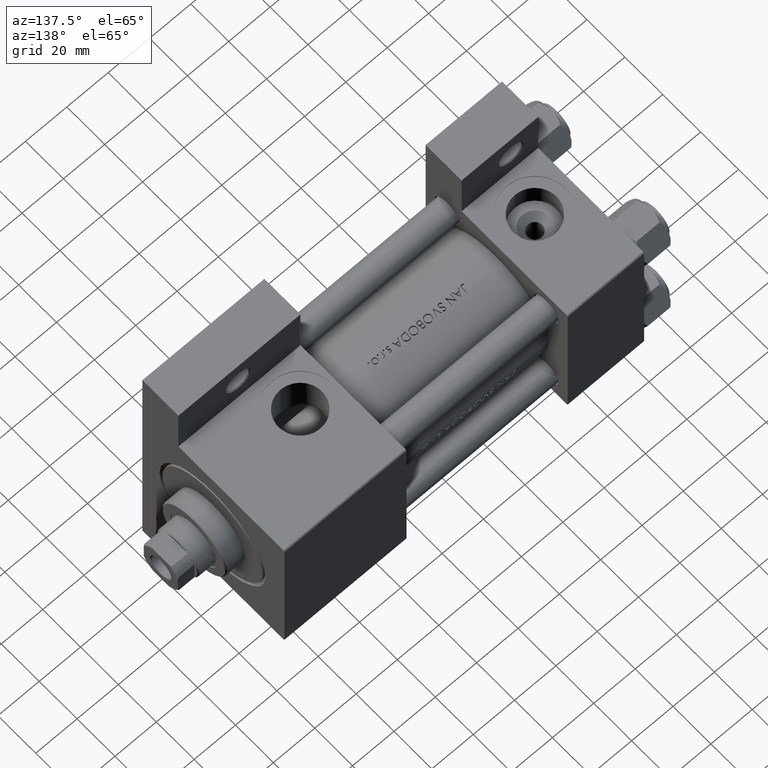
[diagram: clean part render]
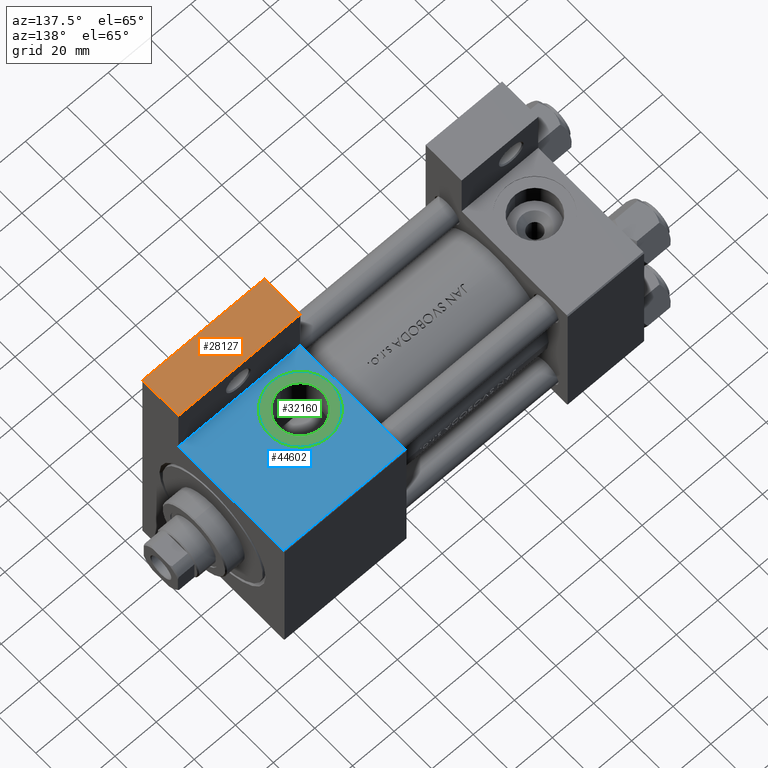
[diagram: same view with three faces highlighted in distinct colors, each labeled with its STEP entity id]
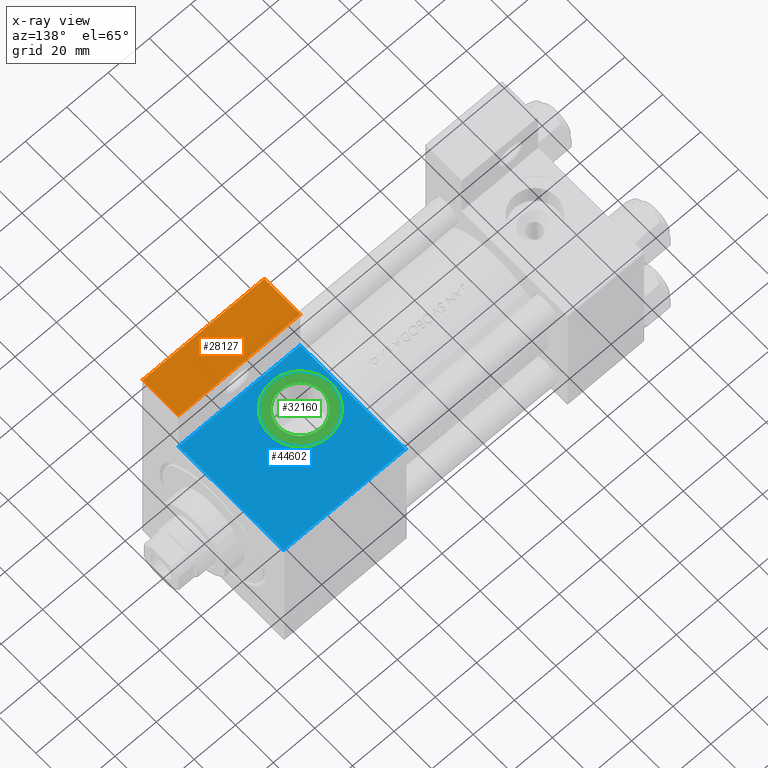
[diagram: x-ray of the same camera — body ghosted, the three highlighted faces saturated]
A machine part, auxiliary view with three faces highlighted in distinct colors.
The next image is the same camera in x-ray (body ghosted, the three faces saturated) — at least one of them is partly hidden behind the body in this view.
Their STEP definitions:

[orange] entity #28127 — the highlighted planar face has unit normal (-0, 0, 1).
#297 = EDGE_LOOP ( 'NONE', ( #1692, #29308, #9807, #22196 ) ) ;
#390 = DIRECTION ( 'NONE',  ( 0.000000000000000000, 0.000000000000000000, -1.000000000000000000 ) ) ;
#589 = VERTEX_POINT ( 'NONE', #29819 ) ;
#1504 = VERTEX_POINT ( 'NONE', #41440 ) ;
#1692 = ORIENTED_EDGE ( 'NONE', *, *, #24674, .F. ) ;
#2413 = CARTESIAN_POINT ( 'NONE',  ( 174.0000000000000000, -63.50000000000002842, -18.50000000000000000 ) ) ;
#5906 = LINE ( 'NONE', #2413, #6669 ) ;
#6482 = VECTOR ( 'NONE', #34898, 1000.000000000000000 ) ;
#6669 = VECTOR ( 'NONE', #25522, 1000.000000000000000 ) ;
#8343 = LINE ( 'NONE', #19029, #15817 ) ;
#9623 = CARTESIAN_POINT ( 'NONE',  ( 114.9999999999999716, -63.50000000000000000, -18.50000000000000000 ) ) ;
#9778 = AXIS2_PLACEMENT_3D ( 'NONE', #39795, #24082, #39305 ) ;
#9807 = ORIENTED_EDGE ( 'NONE', *, *, #33795, .T. ) ;
#12854 = LINE ( 'NONE', #9623, #29294 ) ;
#15817 = VECTOR ( 'NONE', #390, 1000.000000000000000 ) ;
#16862 = FACE_OUTER_BOUND ( 'NONE', #297, .T. ) ;
#19029 = CARTESIAN_POINT ( 'NONE',  ( 114.9999999999999716, -63.50000000000000000, -18.50000000000000000 ) ) ;
#19411 = VERTEX_POINT ( 'NONE', #40379 ) ;
#22196 = ORIENTED_EDGE ( 'NONE', *, *, #34081, .T. ) ;
#23665 = CARTESIAN_POINT ( 'NONE',  ( 114.9999999999999716, -63.50000000000000000, -37.50000000000000000 ) ) ;
#24082 = DIRECTION ( 'NONE',  ( -4.704334850106594808E-16, -1.000000000000000000, 0.000000000000000000 ) ) ;
#24674 = EDGE_CURVE ( 'NONE', #19411, #589, #45883, .T. ) ;
#25522 = DIRECTION ( 'NONE',  ( 0.000000000000000000, 0.000000000000000000, -1.000000000000000000 ) ) ;
#28127 = ADVANCED_FACE ( 'NONE', ( #16862 ), #47030, .T. ) ;
#29294 = VECTOR ( 'NONE', #35529, 1000.000000000000000 ) ;
#29308 = ORIENTED_EDGE ( 'NONE', *, *, #48987, .F. ) ;
#29819 = CARTESIAN_POINT ( 'NONE',  ( 114.9999999999999716, -63.50000000000000000, -37.50000000000000000 ) ) ;
#33795 = EDGE_CURVE ( 'NONE', #40895, #1504, #12854, .T. ) ;
#34081 = EDGE_CURVE ( 'NONE', #1504, #589, #8343, .T. ) ;
#34898 = DIRECTION ( 'NONE',  ( -1.000000000000000000, 4.704334850106594808E-16, -0.000000000000000000 ) ) ;
#35529 = DIRECTION ( 'NONE',  ( -1.000000000000000000, 4.704334850106594808E-16, -0.000000000000000000 ) ) ;
#39305 = DIRECTION ( 'NONE',  ( 1.000000000000000000, -4.704334850106594808E-16, 0.000000000000000000 ) ) ;
#39795 = CARTESIAN_POINT ( 'NONE',  ( 114.9999999999999716, -63.50000000000000000, -18.50000000000000000 ) ) ;
#40379 = CARTESIAN_POINT ( 'NONE',  ( 174.0000000000000000, -63.50000000000002842, -37.50000000000000000 ) ) ;
#40895 = VERTEX_POINT ( 'NONE', #46378 ) ;
#41440 = CARTESIAN_POINT ( 'NONE',  ( 114.9999999999999716, -63.50000000000000000, -18.50000000000000000 ) ) ;
#45883 = LINE ( 'NONE', #23665, #6482 ) ;
#46378 = CARTESIAN_POINT ( 'NONE',  ( 174.0000000000000000, -63.50000000000002842, -18.50000000000000000 ) ) ;
#47030 = PLANE ( 'NONE',  #9778 ) ;
#48987 = EDGE_CURVE ( 'NONE', #40895, #19411, #5906, .T. ) ;

[blue] entity #44602 — the highlighted planar face has unit normal (0, -0, -1).
#360 = LINE ( 'NONE', #41952, #45860 ) ;
#554 = CARTESIAN_POINT ( 'NONE',  ( 114.9999999999999858, -37.50000000000000000, 36.99999999999997868 ) ) ;
#805 = CARTESIAN_POINT ( 'NONE',  ( 114.9999999999999858, -37.50000000000000000, -18.50000000000000000 ) ) ;
#1092 = EDGE_CURVE ( 'NONE', #30499, #10109, #20365, .T. ) ;
#1419 = EDGE_LOOP ( 'NONE', ( #35239, #41733 ) ) ;
#2975 = EDGE_LOOP ( 'NONE', ( #37247, #30632, #40942, #10151 ) ) ;
#4288 = DIRECTION ( 'NONE',  ( 1.000000000000000000, -3.528251137579946599E-16, 0.000000000000000000 ) ) ;
#5520 = DIRECTION ( 'NONE',  ( 0.000000000000000000, 1.000000000000000000, -9.251858538542972814E-17 ) ) ;
#6491 = CARTESIAN_POINT ( 'NONE',  ( 174.0000000000000000, -37.50000000000000000, 37.49999999999997868 ) ) ;
#7418 = EDGE_CURVE ( 'NONE', #44466, #37284, #360, .T. ) ;
#8013 = VECTOR ( 'NONE', #35561, 1000.000000000000000 ) ;
#10109 = VERTEX_POINT ( 'NONE', #32074 ) ;
#10151 = ORIENTED_EDGE ( 'NONE', *, *, #17636, .T. ) ;
#11912 = CARTESIAN_POINT ( 'NONE',  ( 174.0000000000000000, -37.50000000000000000, 37.49999999999997868 ) ) ;
#14313 = DIRECTION ( 'NONE',  ( 0.000000000000000000, 0.000000000000000000, -1.000000000000000000 ) ) ;
#14538 = DIRECTION ( 'NONE',  ( -1.000000000000000000, 0.000000000000000000, 0.000000000000000000 ) ) ;
#16370 = LINE ( 'NONE', #11912, #8013 ) ;
#17636 = EDGE_CURVE ( 'NONE', #37284, #33506, #17852, .T. ) ;
#17852 = LINE ( 'NONE', #805, #46062 ) ;
#18937 = CARTESIAN_POINT ( 'NONE',  ( 132.0000000000000000, -37.50000000000000000, 3.469446951953615767E-15 ) ) ;
#20365 = CIRCLE ( 'NONE', #39488, 15.00000000000002487 ) ;
#21683 = EDGE_CURVE ( 'NONE', #34446, #33506, #16370, .T. ) ;
#21780 = CARTESIAN_POINT ( 'NONE',  ( 132.0000000000000000, -37.50000000000000000, 3.469446951953615767E-15 ) ) ;
#21999 = LINE ( 'NONE', #37214, #42324 ) ;
#25170 = EDGE_CURVE ( 'NONE', #34446, #44466, #21999, .T. ) ;
#25454 = CARTESIAN_POINT ( 'NONE',  ( 174.0000000000000000, -37.50000000000000000, 36.99999999999997868 ) ) ;
#26220 = DIRECTION ( 'NONE',  ( 0.000000000000000000, -9.251858538542972814E-17, -1.000000000000000000 ) ) ;
#26371 = AXIS2_PLACEMENT_3D ( 'NONE', #6491, #5520, #36605 ) ;
#28837 = CARTESIAN_POINT ( 'NONE',  ( 174.0000000000000000, -37.50000000000000711, -18.50000000000000355 ) ) ;
#29411 = DIRECTION ( 'NONE',  ( 0.000000000000000000, 0.000000000000000000, -1.000000000000000000 ) ) ;
#30272 = CARTESIAN_POINT ( 'NONE',  ( 132.0000000000000000, -37.50000000000000000, -15.00000000000002132 ) ) ;
#30499 = VERTEX_POINT ( 'NONE', #30272 ) ;
#30632 = ORIENTED_EDGE ( 'NONE', *, *, #25170, .T. ) ;
#32074 = CARTESIAN_POINT ( 'NONE',  ( 132.0000000000000000, -37.50000000000000000, 15.00000000000002842 ) ) ;
#32148 = FACE_OUTER_BOUND ( 'NONE', #2975, .T. ) ;
#33506 = VERTEX_POINT ( 'NONE', #28837 ) ;
#34149 = DIRECTION ( 'NONE',  ( 0.000000000000000000, -1.000000000000000000, -8.673617379884036705E-17 ) ) ;
#34446 = VERTEX_POINT ( 'NONE', #25454 ) ;
#35239 = ORIENTED_EDGE ( 'NONE', *, *, #1092, .F. ) ;
#35561 = DIRECTION ( 'NONE',  ( 0.000000000000000000, -9.251858538542972814E-17, -1.000000000000000000 ) ) ;
#36366 = FACE_BOUND ( 'NONE', #1419, .T. ) ;
#36605 = DIRECTION ( 'NONE',  ( 0.000000000000000000, 9.251858538542972814E-17, 1.000000000000000000 ) ) ;
#37214 = CARTESIAN_POINT ( 'NONE',  ( 174.0000000000000000, -37.50000000000000000, 36.99999999999997868 ) ) ;
#37247 = ORIENTED_EDGE ( 'NONE', *, *, #21683, .F. ) ;
#37284 = VERTEX_POINT ( 'NONE', #45411 ) ;
#39488 = AXIS2_PLACEMENT_3D ( 'NONE', #21780, #44742, #14313 ) ;
#40942 = ORIENTED_EDGE ( 'NONE', *, *, #7418, .T. ) ;
#41418 = CIRCLE ( 'NONE', #44614, 15.00000000000002487 ) ;
#41733 = ORIENTED_EDGE ( 'NONE', *, *, #42397, .F. ) ;
#41952 = CARTESIAN_POINT ( 'NONE',  ( 114.9999999999999858, -37.50000000000000000, 37.49999999999997868 ) ) ;
#42324 = VECTOR ( 'NONE', #14538, 1000.000000000000000 ) ;
#42397 = EDGE_CURVE ( 'NONE', #10109, #30499, #41418, .T. ) ;
#44466 = VERTEX_POINT ( 'NONE', #554 ) ;
#44602 = ADVANCED_FACE ( 'NONE', ( #36366, #32148 ), #47601, .F. ) ;
#44614 = AXIS2_PLACEMENT_3D ( 'NONE', #18937, #34149, #29411 ) ;
#44742 = DIRECTION ( 'NONE',  ( 0.000000000000000000, -1.000000000000000000, -8.673617379884036705E-17 ) ) ;
#45411 = CARTESIAN_POINT ( 'NONE',  ( 114.9999999999999858, -37.50000000000000000, -18.50000000000000000 ) ) ;
#45860 = VECTOR ( 'NONE', #26220, 1000.000000000000000 ) ;
#46062 = VECTOR ( 'NONE', #4288, 1000.000000000000000 ) ;
#47601 = PLANE ( 'NONE',  #26371 ) ;

[green] entity #32160 — the highlighted planar face has unit normal (0, -0, 1).
#102 = CIRCLE ( 'NONE', #1709, 15.00000000000002487 ) ;
#925 = DIRECTION ( 'NONE',  ( 0.000000000000000000, -1.000000000000000000, -8.673617379884036705E-17 ) ) ;
#1171 = DIRECTION ( 'NONE',  ( 0.000000000000000000, 0.000000000000000000, -1.000000000000000000 ) ) ;
#1709 = AXIS2_PLACEMENT_3D ( 'NONE', #33968, #3105, #18262 ) ;
#3105 = DIRECTION ( 'NONE',  ( 0.000000000000000000, -1.000000000000000000, -8.673617379884036705E-17 ) ) ;
#3711 = CARTESIAN_POINT ( 'NONE',  ( 132.0000000000000000, -37.29999999999999716, 3.486794186713383443E-15 ) ) ;
#5327 = CARTESIAN_POINT ( 'NONE',  ( 132.0000000000000000, -37.29999999999999716, -10.47999999999998266 ) ) ;
#7067 = CARTESIAN_POINT ( 'NONE',  ( 132.0000000000000000, -37.29999999999999716, 3.486794186713383443E-15 ) ) ;
#9629 = EDGE_LOOP ( 'NONE', ( #24547, #48732 ) ) ;
#10550 = DIRECTION ( 'NONE',  ( 0.000000000000000000, 8.673617379884036705E-17, -1.000000000000000000 ) ) ;
#11033 = FACE_OUTER_BOUND ( 'NONE', #43257, .T. ) ;
#12846 = VERTEX_POINT ( 'NONE', #24524 ) ;
#13332 = AXIS2_PLACEMENT_3D ( 'NONE', #7067, #25704, #10550 ) ;
#15261 = CIRCLE ( 'NONE', #16873, 10.47999999999998622 ) ;
#15278 = CIRCLE ( 'NONE', #22455, 10.47999999999998622 ) ;
#15471 = ORIENTED_EDGE ( 'NONE', *, *, #42972, .T. ) ;
#16775 = CARTESIAN_POINT ( 'NONE',  ( 132.0000000000000000, -37.29999999999999716, 3.486794186713383443E-15 ) ) ;
#16873 = AXIS2_PLACEMENT_3D ( 'NONE', #3711, #30084, #22349 ) ;
#17813 = VERTEX_POINT ( 'NONE', #40613 ) ;
#18262 = DIRECTION ( 'NONE',  ( 0.000000000000000000, 0.000000000000000000, -1.000000000000000000 ) ) ;
#22349 = DIRECTION ( 'NONE',  ( 0.000000000000000000, 0.000000000000000000, -1.000000000000000000 ) ) ;
#22455 = AXIS2_PLACEMENT_3D ( 'NONE', #16775, #35472, #43462 ) ;
#22707 = EDGE_CURVE ( 'NONE', #30906, #17813, #28705, .T. ) ;
#24524 = CARTESIAN_POINT ( 'NONE',  ( 132.0000000000000000, -37.29999999999999716, 10.47999999999998977 ) ) ;
#24547 = ORIENTED_EDGE ( 'NONE', *, *, #46014, .F. ) ;
#25704 = DIRECTION ( 'NONE',  ( 0.000000000000000000, -1.000000000000000000, -8.673617379884036705E-17 ) ) ;
#28705 = CIRCLE ( 'NONE', #29488, 15.00000000000002487 ) ;
#29488 = AXIS2_PLACEMENT_3D ( 'NONE', #38757, #925, #1171 ) ;
#30084 = DIRECTION ( 'NONE',  ( 0.000000000000000000, -1.000000000000000000, -8.673617379884036705E-17 ) ) ;
#30248 = EDGE_CURVE ( 'NONE', #12846, #40046, #15261, .T. ) ;
#30906 = VERTEX_POINT ( 'NONE', #35096 ) ;
#32160 = ADVANCED_FACE ( 'NONE', ( #49148, #11033 ), #37177, .T. ) ;
#33968 = CARTESIAN_POINT ( 'NONE',  ( 132.0000000000000000, -37.29999999999999716, 3.486794186713383443E-15 ) ) ;
#35096 = CARTESIAN_POINT ( 'NONE',  ( 132.0000000000000000, -37.29999999999999716, 15.00000000000002842 ) ) ;
#35472 = DIRECTION ( 'NONE',  ( 0.000000000000000000, -1.000000000000000000, -8.673617379884036705E-17 ) ) ;
#35866 = ORIENTED_EDGE ( 'NONE', *, *, #22707, .T. ) ;
#37177 = PLANE ( 'NONE',  #13332 ) ;
#38757 = CARTESIAN_POINT ( 'NONE',  ( 132.0000000000000000, -37.29999999999999716, 3.486794186713383443E-15 ) ) ;
#40046 = VERTEX_POINT ( 'NONE', #5327 ) ;
#40613 = CARTESIAN_POINT ( 'NONE',  ( 132.0000000000000000, -37.29999999999999716, -15.00000000000002132 ) ) ;
#42972 = EDGE_CURVE ( 'NONE', #17813, #30906, #102, .T. ) ;
#43257 = EDGE_LOOP ( 'NONE', ( #15471, #35866 ) ) ;
#43462 = DIRECTION ( 'NONE',  ( 0.000000000000000000, 0.000000000000000000, -1.000000000000000000 ) ) ;
#46014 = EDGE_CURVE ( 'NONE', #40046, #12846, #15278, .T. ) ;
#48732 = ORIENTED_EDGE ( 'NONE', *, *, #30248, .F. ) ;
#49148 = FACE_BOUND ( 'NONE', #9629, .T. ) ;